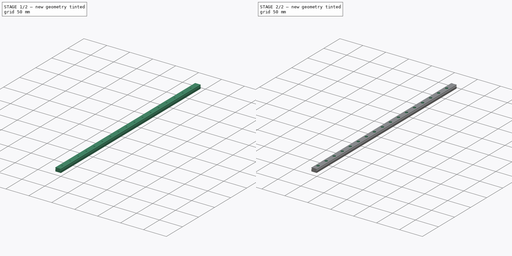
[diagram: build sequence overview — one tinted view per stage of 2, left to right]
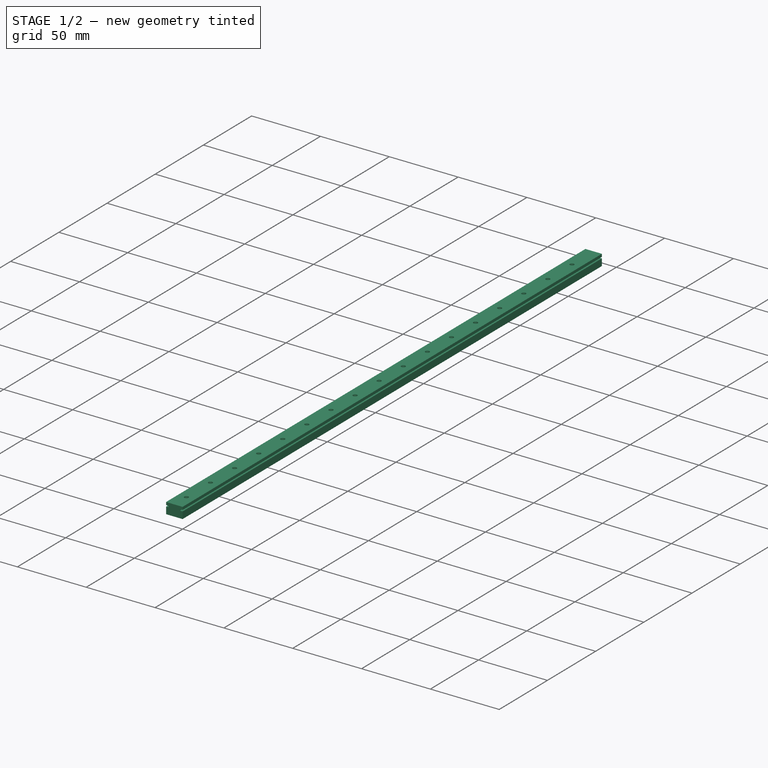
[diagram: stage 1 of 2 — iso view after this stage's code; geometry added in this stage tinted green]
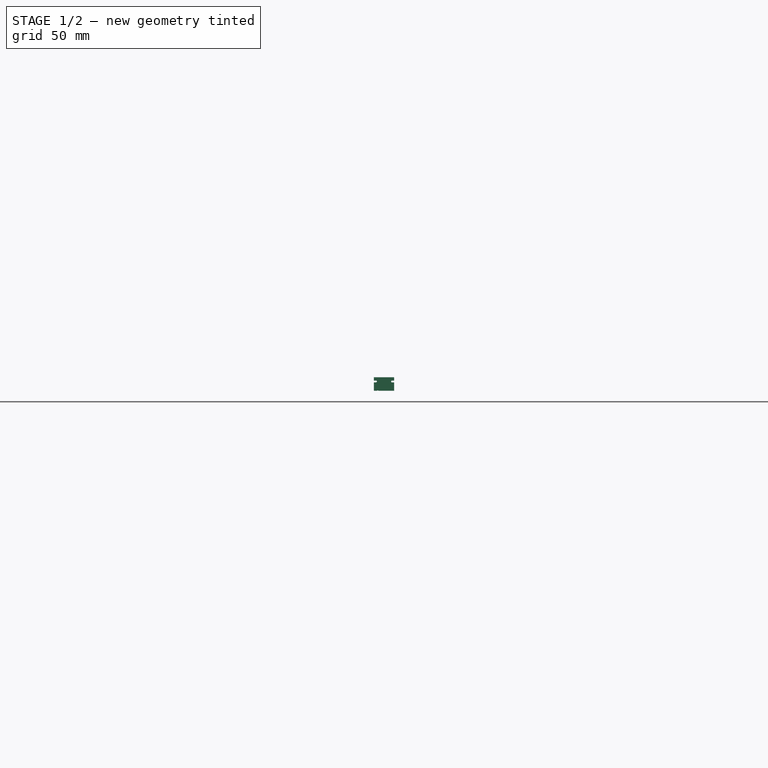
[diagram: stage 1 of 2 — front view after this stage's code; geometry added in this stage tinted green]
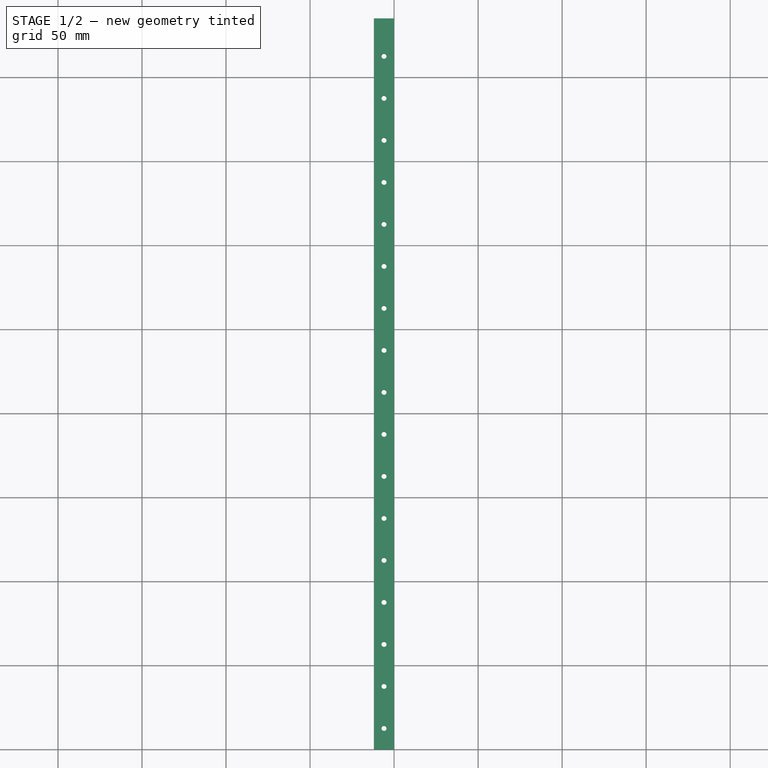
[diagram: stage 1 of 2 — top view after this stage's code; geometry added in this stage tinted green]
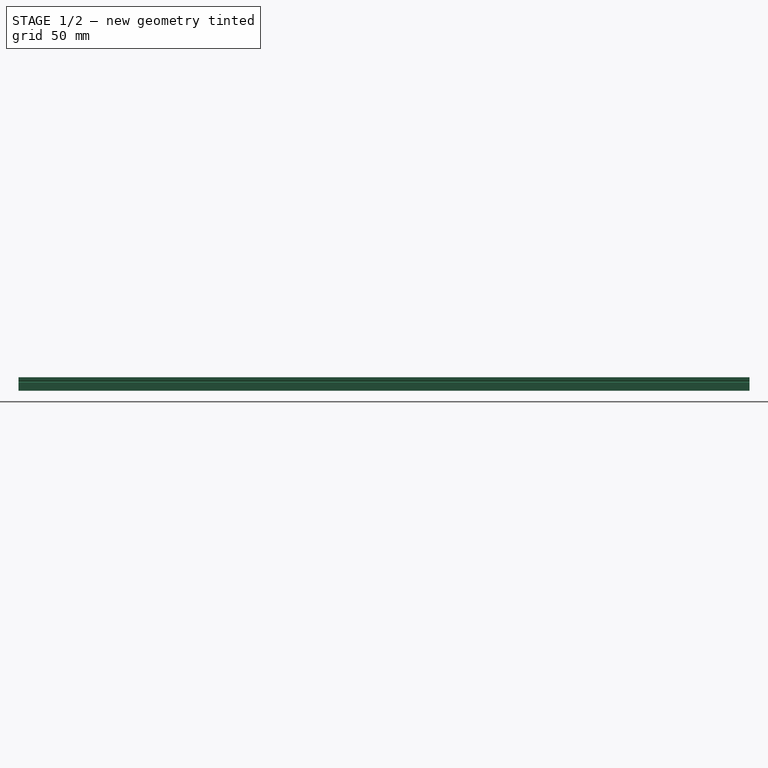
[diagram: stage 1 of 2 — right view after this stage's code; geometry added in this stage tinted green]
FCSTD DOCUMENT  (FreeCAD 0.19R24267 (Git))
Label: mgn12h-rail-435
License: All rights reserved
LicenseURL: http://en.wikipedia.org/wiki/All_rights_reserved
objects: Sketcher::SketchObject×3, PartDesign::Hole×2, PartDesign::Pad×1, PartDesign::Chamfer×1, PartDesign::Body×1
note: 12 computed .brp shape members not serialized (recipe doc carries the construction recipe); baked Part::Feature solids carry a one-line shape summary decoded from their .brp

FEATURE [Sketcher::SketchObject] Sketch  label="MGN 12H Sketch"
  FullyConstrained = true
  MapMode = 5
  Placement = pos=(0,0,0) rot=(1,0,0;1.5708rad)
  Support = -> [XZ_Plane]
  sketch-geometry (16):
    g0: LineSegment StartX=-12 StartY=5 StartZ=0 EndX=-10.7 EndY=5 EndZ=0
    g1: LineSegment StartX=-10.7 StartY=6 StartZ=0 EndX=-12 EndY=6 EndZ=0
    g2: LineSegment StartX=-12 StartY=6 StartZ=0 EndX=-12 EndY=8 EndZ=0
    g3: LineSegment StartX=-12 StartY=8 StartZ=0 EndX=0 EndY=8 EndZ=0
    g4: LineSegment StartX=0 StartY=8 StartZ=0 EndX=0 EndY=6 EndZ=0
    g5: LineSegment StartX=0 StartY=6 StartZ=0 EndX=-1.3 EndY=6 EndZ=0
    g6: LineSegment StartX=-1.3 StartY=5 StartZ=0 EndX=0 EndY=5 EndZ=0
    g7: LineSegment StartX=0 StartY=5 StartZ=0 EndX=0 EndY=0 EndZ=0
    g8: LineSegment StartX=-12 StartY=0 StartZ=0 EndX=-10 EndY=0 EndZ=0
    g9: LineSegment StartX=-10 StartY=0 StartZ=0 EndX=-10 EndY=0.2 EndZ=0
    g10: LineSegment StartX=-10 StartY=0.2 StartZ=0 EndX=-9.5 EndY=0.2 EndZ=0
    g11: LineSegment StartX=-9.5 StartY=0 StartZ=0 EndX=0 EndY=0 EndZ=0
    g12: LineSegment StartX=-12 StartY=5 StartZ=0 EndX=-12 EndY=0 EndZ=0
    g13: ArcOfCircle CenterX=-10.7 CenterY=5.5 CenterZ=0 NormalX=0 NormalY=0 NormalZ=1 AngleXU=0 Radius=0.5 StartAngle=4.71239 EndAngle=7.85398
    g14: ArcOfCircle CenterX=-1.3 CenterY=5.5 CenterZ=0 NormalX=0 NormalY=0 NormalZ=1 AngleXU=0 Radius=0.5 StartAngle=1.5708 EndAngle=4.71239
    g15: LineSegment StartX=-9.5 StartY=0 StartZ=0 EndX=-9.5 EndY=0.2 EndZ=0
  constraints (49):
    c: Horizontal(g0)
    c: Horizontal(g1)
    c: Coincident(g1,g2)
    c: Vertical(g2)
    c: Coincident(g2,g3)
    c: PointOnObject(g3,g-2)
    c: Coincident(g3,g4)
    c: Vertical(g4)
    c: Coincident(g4,g5)
    c: Horizontal(g5)
    c: Horizontal(g6)
    c: Coincident(g6,g7)
    c: DistanceY(g8,g2) = 8
    c: Horizontal(g3)
    c: DistanceY(g8,g1) = 6
    c: Vertical(g7)
    c: DistanceX(g2,g3) = 12
    c: Equal(g4,g2)
    c: Equal(g1,g0)
    c: Equal(g0,g6)
    c: Equal(g6,g5)
    c: Vertical(g9)
    c: Coincident(g9,g10)
    c: Horizontal(g10)
    c: Coincident(g11,g7)
    c: Horizontal(g11)
    c: DistanceX(g10,g10) = 0.5
    c: DistanceY(g11,g10) = 0.2
    c: DistanceX(g11,g7) = 9.5
    c: Coincident(g12,g0)
    c: Coincident(g12,g8)
    c: Vertical(g12)
    c: PointOnObject(g8,g-1)
    c: DistanceX(g8,g8) = 2
    c: DistanceY(g12,g12) = 5
    c: Equal(g7,g12)
    c: DistanceX(g1,g5) = 9.4
    c: Coincident(g8,g9)
    c: Coincident(g13,g1)
    c: Coincident(g0,g13)
    c: Radius(g13) = 0.5
    c: Coincident(g14,g6)
    c: Coincident(g14,g5)
    c: Radius(g14) = 0.5
    c: DistanceX(g13,g14) = 9.4
    c: Coincident(g7,g-1)
    c: Horizontal(g8)
    c: Coincident(g15,g11)
    c: Coincident(g15,g10)
FEATURE [PartDesign::Pad] Pad
  AllowMultiFace = false
  Direction = (1,1,1)
  Length = 435
  Length2 = 100
  Placement = pos=(0,0,0) rot=(1,0,0;1.5708rad)
  Profile = -> Sketch
  Reversed = true
  Type = 0
FEATURE [Sketcher::SketchObject] Sketch001  label="Bohrung 3,5mm"
  FullyConstrained = true
  MapMode = 5
  Placement = pos=(0,1.8e-15,8) rot=(0,0,1;3.14159rad)
  Support = -> [Pad]
  sketch-geometry (79):
    g0: LineSegment StartX=6 StartY=-12.5 StartZ=0 EndX=6 EndY=-37.5 EndZ=0
    g1: LineSegment StartX=6 StartY=-37.5 StartZ=0 EndX=6 EndY=-62.5 EndZ=0
    g2: LineSegment StartX=6 StartY=-62.5 StartZ=0 EndX=6 EndY=-87.5 EndZ=0
    g3: LineSegment StartX=6 StartY=-87.5 StartZ=0 EndX=6 EndY=-112.5 EndZ=0
    g4: LineSegment StartX=6 StartY=-112.5 StartZ=0 EndX=6 EndY=-137.5 EndZ=0
    g5: LineSegment StartX=6 StartY=-137.5 StartZ=0 EndX=6 EndY=-162.5 EndZ=0
    g6: LineSegment StartX=6 StartY=-162.5 StartZ=0 EndX=6 EndY=-187.5 EndZ=0
    g7: LineSegment StartX=6 StartY=-187.5 StartZ=0 EndX=6 EndY=-212.5 EndZ=0
    g8: LineSegment StartX=6 StartY=-212.5 StartZ=0 EndX=6 EndY=-237.5 EndZ=0
    g9: LineSegment StartX=6 StartY=-237.5 StartZ=0 EndX=6 EndY=-262.5 EndZ=0
    g10: LineSegment StartX=6 StartY=-262.5 StartZ=0 EndX=6 EndY=-287.5 EndZ=0
    g11: LineSegment StartX=6 StartY=-287.5 StartZ=0 EndX=6 EndY=-312.5 EndZ=0
    g12: LineSegment StartX=6 StartY=-312.5 StartZ=0 EndX=6 EndY=-337.5 EndZ=0
    g13: LineSegment StartX=6 StartY=-337.5 StartZ=0 EndX=6 EndY=-362.5 EndZ=0
    g14: LineSegment StartX=6 StartY=-362.5 StartZ=0 EndX=6 EndY=-387.5 EndZ=0
    g15: LineSegment StartX=6 StartY=-387.5 StartZ=0 EndX=6 EndY=-412.5 EndZ=0
    g16: LineSegment StartX=6 StartY=-412.5 StartZ=0 EndX=6 EndY=-437.5 EndZ=0
    g17: LineSegment StartX=6 StartY=-437.5 StartZ=0 EndX=6 EndY=-462.5 EndZ=0
    g18: LineSegment StartX=6 StartY=-462.5 StartZ=0 EndX=6 EndY=-487.5 EndZ=0
    g19: LineSegment StartX=6 StartY=-487.5 StartZ=0 EndX=6 EndY=-512.5 EndZ=0
    g20: LineSegment StartX=6 StartY=-512.5 StartZ=0 EndX=6 EndY=-537.5 EndZ=0
    g21: LineSegment StartX=6 StartY=-537.5 StartZ=0 EndX=6 EndY=-562.5 EndZ=0
    g22: LineSegment StartX=6 StartY=-562.5 StartZ=0 EndX=6 EndY=-587.5 EndZ=0
    g23: LineSegment StartX=6 StartY=-587.5 StartZ=0 EndX=6 EndY=-612.5 EndZ=0
    g24: LineSegment StartX=6 StartY=-612.5 StartZ=0 EndX=6 EndY=-637.5 EndZ=0
    g25: LineSegment StartX=6 StartY=-637.5 StartZ=0 EndX=6 EndY=-662.5 EndZ=0
    g26: LineSegment StartX=6 StartY=-662.5 StartZ=0 EndX=6 EndY=-687.5 EndZ=0
    g27: LineSegment StartX=6 StartY=-687.5 StartZ=0 EndX=6 EndY=-712.5 EndZ=0
    g28: LineSegment StartX=6 StartY=-712.5 StartZ=0 EndX=6 EndY=-737.5 EndZ=0
    g29: LineSegment StartX=6 StartY=-737.5 StartZ=0 EndX=6 EndY=-762.5 EndZ=0
    g30: LineSegment StartX=6 StartY=-762.5 StartZ=0 EndX=6 EndY=-787.5 EndZ=0
    g31: LineSegment StartX=6 StartY=-787.5 StartZ=0 EndX=6 EndY=-812.5 EndZ=0
    g32: LineSegment StartX=6 StartY=-812.5 StartZ=0 EndX=6 EndY=-837.5 EndZ=0
    g33: LineSegment StartX=6 StartY=-837.5 StartZ=0 EndX=6 EndY=-862.5 EndZ=0
    g34: LineSegment StartX=6 StartY=-862.5 StartZ=0 EndX=6 EndY=-887.5 EndZ=0
    g35: LineSegment StartX=6 StartY=-887.5 StartZ=0 EndX=6 EndY=-912.5 EndZ=0
    g36: LineSegment StartX=6 StartY=-912.5 StartZ=0 EndX=6 EndY=-937.5 EndZ=0
    g37: LineSegment StartX=6 StartY=-937.5 StartZ=0 EndX=6 EndY=-962.5 EndZ=0
    g38: LineSegment StartX=6 StartY=-962.5 StartZ=0 EndX=6 EndY=-987.5 EndZ=0
    g39: Circle CenterX=6 CenterY=-12.5 CenterZ=0 NormalX=0 NormalY=0 NormalZ=1 AngleXU=0 Radius=1.75
    g40: Circle CenterX=6 CenterY=-37.5 CenterZ=0 NormalX=0 NormalY=0 NormalZ=1 AngleXU=0 Radius=1.75
    g41: Circle CenterX=6 CenterY=-62.5 CenterZ=0 NormalX=0 NormalY=0 NormalZ=1 AngleXU=0 Radius=1.75
    g42: Circle CenterX=6 CenterY=-87.5 CenterZ=0 NormalX=0 NormalY=0 NormalZ=1 AngleXU=0 Radius=1.75
    g43: Circle CenterX=6 CenterY=-112.5 CenterZ=0 NormalX=0 NormalY=0 NormalZ=1 AngleXU=0 Radius=1.75
    g44: Circle CenterX=6 CenterY=-137.5 CenterZ=0 NormalX=0 NormalY=0 NormalZ=1 AngleXU=0 Radius=1.75
    g45: Circle CenterX=6 CenterY=-162.5 CenterZ=0 NormalX=0 NormalY=0 NormalZ=1 AngleXU=0 Radius=1.75
    g46: Circle CenterX=6 CenterY=-187.5 CenterZ=0 NormalX=0 NormalY=0 NormalZ=1 AngleXU=0 Radius=1.75
    g47: Circle CenterX=6 CenterY=-212.5 CenterZ=0 NormalX=0 NormalY=0 NormalZ=1 AngleXU=0 Radius=1.75
    g48: Circle CenterX=6 CenterY=-237.5 CenterZ=0 NormalX=0 NormalY=0 NormalZ=1 AngleXU=0 Radius=1.75
    g49: Circle CenterX=6 CenterY=-262.5 CenterZ=0 NormalX=0 NormalY=0 NormalZ=1 AngleXU=0 Radius=1.75
    g50: Circle CenterX=6 CenterY=-287.5 CenterZ=0 NormalX=0 NormalY=0 NormalZ=1 AngleXU=0 Radius=1.75
    g51: Circle CenterX=6 CenterY=-312.5 CenterZ=0 NormalX=0 NormalY=0 NormalZ=1 AngleXU=0 Radius=1.75
    g52: Circle CenterX=6 CenterY=-337.5 CenterZ=0 NormalX=0 NormalY=0 NormalZ=1 AngleXU=0 Radius=1.75
    g53: Circle CenterX=6 CenterY=-362.5 CenterZ=0 NormalX=0 NormalY=0 NormalZ=1 AngleXU=0 Radius=1.75
    g54: Circle CenterX=6 CenterY=-387.5 CenterZ=0 NormalX=0 NormalY=0 NormalZ=1 AngleXU=0 Radius=1.75
    g55: Circle CenterX=6 CenterY=-412.5 CenterZ=0 NormalX=0 NormalY=0 NormalZ=1 AngleXU=0 Radius=1.75
    g56: Circle CenterX=6 CenterY=-437.5 CenterZ=0 NormalX=0 NormalY=0 NormalZ=1 AngleXU=0 Radius=1.75
    g57: Circle CenterX=6 CenterY=-462.5 CenterZ=0 NormalX=0 NormalY=0 NormalZ=1 AngleXU=0 Radius=1.75
    g58: Circle CenterX=6 CenterY=-487.5 CenterZ=0 NormalX=0 NormalY=0 NormalZ=1 AngleXU=0 Radius=1.75
    g59: Circle CenterX=6 CenterY=-512.5 CenterZ=0 NormalX=0 NormalY=0 NormalZ=1 AngleXU=0 Radius=1.75
    g60: Circle CenterX=6 CenterY=-537.5 CenterZ=0 NormalX=0 NormalY=0 NormalZ=1 AngleXU=0 Radius=1.75
    g61: Circle CenterX=6 CenterY=-562.5 CenterZ=0 NormalX=0 NormalY=0 NormalZ=1 AngleXU=0 Radius=1.75
    g62: Circle CenterX=6 CenterY=-587.5 CenterZ=0 NormalX=0 NormalY=0 NormalZ=1 AngleXU=0 Radius=1.75
    g63: Circle CenterX=6 CenterY=-612.5 CenterZ=0 NormalX=0 NormalY=0 NormalZ=1 AngleXU=0 Radius=1.75
    g64: Circle CenterX=6 CenterY=-637.5 CenterZ=0 NormalX=0 NormalY=0 NormalZ=1 AngleXU=0 Radius=1.75
    g65: Circle CenterX=6 CenterY=-662.5 CenterZ=0 NormalX=0 NormalY=0 NormalZ=1 AngleXU=0 Radius=1.75
    g66: Circle CenterX=6 CenterY=-687.5 CenterZ=0 NormalX=0 NormalY=0 NormalZ=1 AngleXU=0 Radius=1.75
    g67: Circle CenterX=6 CenterY=-712.5 CenterZ=0 NormalX=0 NormalY=0 NormalZ=1 AngleXU=0 Radius=1.75
    g68: Circle CenterX=6 CenterY=-737.5 CenterZ=0 NormalX=0 NormalY=0 NormalZ=1 AngleXU=0 Radius=1.75
    g69: Circle CenterX=6 CenterY=-762.5 CenterZ=0 NormalX=0 NormalY=0 NormalZ=1 AngleXU=0 Radius=1.75
    g70: Circle CenterX=6 CenterY=-787.5 CenterZ=0 NormalX=0 NormalY=0 NormalZ=1 AngleXU=0 Radius=1.75
    g71: Circle CenterX=6 CenterY=-812.5 CenterZ=0 NormalX=0 NormalY=0 NormalZ=1 AngleXU=0 Radius=1.75
    g72: Circle CenterX=6 CenterY=-837.5 CenterZ=0 NormalX=0 NormalY=0 NormalZ=1 AngleXU=0 Radius=1.75
    g73: Circle CenterX=6 CenterY=-862.5 CenterZ=0 NormalX=0 NormalY=0 NormalZ=1 AngleXU=0 Radius=1.75
    g74: Circle CenterX=6 CenterY=-887.5 CenterZ=0 NormalX=0 NormalY=0 NormalZ=1 AngleXU=0 Radius=1.75
    g75: Circle CenterX=6 CenterY=-912.5 CenterZ=0 NormalX=0 NormalY=0 NormalZ=1 AngleXU=0 Radius=1.75
    g76: Circle CenterX=6 CenterY=-937.5 CenterZ=0 NormalX=0 NormalY=0 NormalZ=1 AngleXU=0 Radius=1.75
    g77: Circle CenterX=6 CenterY=-962.5 CenterZ=0 NormalX=0 NormalY=0 NormalZ=1 AngleXU=0 Radius=1.75
    g78: Circle CenterX=6 CenterY=-987.5 CenterZ=0 NormalX=0 NormalY=0 NormalZ=1 AngleXU=0 Radius=1.75
  constraints (198):
    c: Vertical(g0)
    c: Coincident(g0,g1)
    c: Vertical(g1)
    c: Coincident(g1,g2)
    c: Coincident(g2,g3)
    c: Coincident(g3,g4)
    c: Coincident(g4,g5)
    c: Coincident(g5,g6)
    c: Vertical(g6)
    c: Coincident(g6,g7)
    c: Coincident(g7,g8)
    c: Coincident(g8,g9)
    c: Vertical(g9)
    c: Coincident(g9,g10)
    c: Coincident(g10,g11)
    c: Coincident(g11,g12)
    c: Coincident(g12,g13)
    c: Coincident(g13,g14)
    c: Vertical(g14)
    c: Coincident(g14,g15)
    c: Coincident(g15,g16)
    c: Coincident(g16,g17)
    c: Coincident(g17,g18)
    c: Coincident(g18,g19)
    c: Vertical(g19)
    c: Coincident(g19,g20)
    c: Vertical(g20)
    c: Coincident(g20,g21)
    c: Vertical(g21)
    c: Coincident(g21,g22)
    c: Vertical(g22)
    c: Coincident(g22,g23)
    c: Coincident(g23,g24)
    c: Vertical(g24)
    c: Coincident(g24,g25)
    c: Vertical(g25)
    c: Coincident(g25,g26)
    c: Vertical(g26)
    c: Coincident(g26,g27)
    c: Coincident(g27,g28)
    c: Vertical(g28)
    c: Coincident(g28,g29)
    c: Vertical(g29)
    c: Coincident(g29,g30)
    c: Coincident(g30,g31)
    c: Vertical(g31)
    c: Coincident(g31,g32)
    c: Coincident(g32,g33)
    c: Vertical(g33)
    c: Coincident(g33,g34)
    c: Vertical(g34)
    c: Coincident(g34,g35)
    c: Vertical(g35)
    c: Coincident(g35,g36)
    c: Coincident(g36,g37)
    c: Vertical(g37)
    c: Coincident(g37,g38)
    c: Vertical(g38)
    c: Vertical(g36)
    c: Vertical(g32)
    c: Vertical(g30)
    c: Vertical(g27)
    c: Vertical(g23)
    c: Vertical(g18)
    c: Vertical(g17)
    c: Vertical(g16)
    c: Vertical(g15)
    c: Vertical(g13)
    c: Vertical(g12)
    c: Vertical(g11)
    c: Vertical(g10)
    c: Vertical(g8)
    c: Vertical(g7)
    c: Vertical(g5)
    c: Vertical(g4)
    c: Vertical(g3)
    c: Vertical(g2)
    c: DistanceY(g0,g0) = 25
    c: Equal(g0,g1)
    c: Equal(g1,g2)
    c: Equal(g2,g3)
    c: Equal(g3,g4)
    c: Equal(g4,g5)
    c: Equal(g5,g6)
    c: Equal(g6,g7)
    c: Equal(g7,g8)
    c: Equal(g8,g9)
    c: Equal(g9,g10)
    c: Equal(g10,g11)
    c: Equal(g11,g12)
    c: Equal(g12,g13)
    c: Equal(g13,g14)
    c: Equal(g14,g15)
    c: Equal(g15,g16)
    c: Equal(g16,g17)
    c: Equal(g17,g18)
    c: Equal(g18,g19)
    c: Equal(g19,g20)
    c: Equal(g20,g21)
    c: Equal(g21,g22)
    c: Equal(g22,g23)
    c: Equal(g23,g24)
    c: Equal(g24,g25)
    c: Equal(g25,g26)
    c: Equal(g26,g27)
    c: Equal(g27,g28)
    c: Equal(g28,g29)
    c: Equal(g29,g30)
    c: Equal(g30,g31)
    c: Equal(g31,g32)
    c: Equal(g32,g33)
    c: Equal(g33,g34)
    c: Equal(g34,g35)
    c: Equal(g35,g36)
    c: Equal(g36,g37)
    c: Equal(g37,g38)
    c: DistanceY(g0,g-1) = 12.5
    c: DistanceX(g-1,g0) = 6
    c: Coincident(g39,g0)
    c: Coincident(g40,g0)
    c: Coincident(g41,g1)
    c: Coincident(g42,g2)
    c: Coincident(g43,g3)
    c: Coincident(g44,g4)
    c: Coincident(g45,g5)
    c: Coincident(g46,g6)
    c: Coincident(g47,g7)
    c: Coincident(g48,g8)
    c: Coincident(g49,g9)
    c: Coincident(g50,g10)
    c: Coincident(g51,g11)
    c: Coincident(g52,g12)
    c: Coincident(g53,g13)
    c: Coincident(g54,g14)
    c: Coincident(g55,g15)
    c: Coincident(g56,g16)
    c: Coincident(g57,g17)
    c: Coincident(g58,g18)
    c: Coincident(g59,g19)
    c: Coincident(g60,g20)
    c: Coincident(g61,g21)
    c: Coincident(g62,g22)
    c: Coincident(g63,g23)
    c: Coincident(g64,g24)
    c: Coincident(g65,g25)
    c: Coincident(g66,g26)
    c: Coincident(g67,g27)
    c: Coincident(g68,g28)
    c: Coincident(g69,g29)
    c: Coincident(g70,g30)
    c: Coincident(g71,g31)
    c: Coincident(g72,g32)
    c: Coincident(g73,g33)
    c: Coincident(g74,g34)
    c: Coincident(g75,g35)
    c: Coincident(g76,g36)
    c: Coincident(g77,g37)
    c: Coincident(g78,g38)
    c: Radius(g39) = 1.75
    c: Equal(g39,g40)
    c: Equal(g40,g41)
    c: Equal(g41,g42)
    c: Equal(g42,g43)
    c: Equal(g43,g44)
    c: Equal(g44,g45)
    c: Equal(g45,g46)
    c: Equal(g46,g47)
    c: Equal(g47,g48)
    c: Equal(g48,g49)
    c: Equal(g49,g50)
    c: Equal(g50,g51)
    c: Equal(g51,g52)
    c: Equal(g52,g53)
    c: Equal(g53,g54)
    c: Equal(g54,g55)
    c: Equal(g55,g56)
    c: Equal(g56,g57)
    c: Equal(g57,g58)
    c: Equal(g58,g59)
    c: Equal(g59,g60)
    c: Equal(g60,g61)
    c: Equal(g61,g62)
    c: Equal(g62,g63)
    c: Equal(g63,g64)
    c: Equal(g64,g65)
    c: Equal(g65,g66)
    c: Equal(g66,g67)
    c: Equal(g67,g68)
    c: Equal(g68,g69)
    c: Equal(g69,g70)
    c: Equal(g70,g71)
    c: Equal(g71,g72)
    c: Equal(g72,g73)
    c: Equal(g73,g74)
    c: Equal(g74,g75)
    c: Equal(g75,g76)
    c: Equal(g76,g77)
    c: Equal(g77,g78)
FEATURE [Sketcher::SketchObject] Sketch002  label="Bohrung 6mm"
  FullyConstrained = true
  MapMode = 5
  Placement = pos=(0,1.8e-15,8) rot=(0,0,1;3.14159rad)
  Support = -> [Pad]
  sketch-geometry (79):
    g0: LineSegment StartX=6 StartY=-12.5 StartZ=0 EndX=6 EndY=-37.5 EndZ=0
    g1: LineSegment StartX=6 StartY=-37.5 StartZ=0 EndX=6 EndY=-62.5 EndZ=0
    g2: LineSegment StartX=6 StartY=-62.5 StartZ=0 EndX=6 EndY=-87.5 EndZ=0
    g3: LineSegment StartX=6 StartY=-87.5 StartZ=0 EndX=6 EndY=-112.5 EndZ=0
    g4: LineSegment StartX=6 StartY=-112.5 StartZ=0 EndX=6 EndY=-137.5 EndZ=0
    g5: LineSegment StartX=6 StartY=-137.5 StartZ=0 EndX=6 EndY=-162.5 EndZ=0
    g6: LineSegment StartX=6 StartY=-162.5 StartZ=0 EndX=6 EndY=-187.5 EndZ=0
    g7: LineSegment StartX=6 StartY=-187.5 StartZ=0 EndX=6 EndY=-212.5 EndZ=0
    g8: LineSegment StartX=6 StartY=-212.5 StartZ=0 EndX=6 EndY=-237.5 EndZ=0
    g9: LineSegment StartX=6 StartY=-237.5 StartZ=0 EndX=6 EndY=-262.5 EndZ=0
    g10: LineSegment StartX=6 StartY=-262.5 StartZ=0 EndX=6 EndY=-287.5 EndZ=0
    g11: LineSegment StartX=6 StartY=-287.5 StartZ=0 EndX=6 EndY=-312.5 EndZ=0
    g12: LineSegment StartX=6 StartY=-312.5 StartZ=0 EndX=6 EndY=-337.5 EndZ=0
    g13: LineSegment StartX=6 StartY=-337.5 StartZ=0 EndX=6 EndY=-362.5 EndZ=0
    g14: LineSegment StartX=6 StartY=-362.5 StartZ=0 EndX=6 EndY=-387.5 EndZ=0
    g15: LineSegment StartX=6 StartY=-387.5 StartZ=0 EndX=6 EndY=-412.5 EndZ=0
    g16: LineSegment StartX=6 StartY=-412.5 StartZ=0 EndX=6 EndY=-437.5 EndZ=0
    g17: LineSegment StartX=6 StartY=-437.5 StartZ=0 EndX=6 EndY=-462.5 EndZ=0
    g18: LineSegment StartX=6 StartY=-462.5 StartZ=0 EndX=6 EndY=-487.5 EndZ=0
    g19: LineSegment StartX=6 StartY=-487.5 StartZ=0 EndX=6 EndY=-512.5 EndZ=0
    g20: LineSegment StartX=6 StartY=-512.5 StartZ=0 EndX=6 EndY=-537.5 EndZ=0
    g21: LineSegment StartX=6 StartY=-537.5 StartZ=0 EndX=6 EndY=-562.5 EndZ=0
    g22: LineSegment StartX=6 StartY=-562.5 StartZ=0 EndX=6 EndY=-587.5 EndZ=0
    g23: LineSegment StartX=6 StartY=-587.5 StartZ=0 EndX=6 EndY=-612.5 EndZ=0
    g24: LineSegment StartX=6 StartY=-612.5 StartZ=0 EndX=6 EndY=-637.5 EndZ=0
    g25: LineSegment StartX=6 StartY=-637.5 StartZ=0 EndX=6 EndY=-662.5 EndZ=0
    g26: LineSegment StartX=6 StartY=-662.5 StartZ=0 EndX=6 EndY=-687.5 EndZ=0
    g27: LineSegment StartX=6 StartY=-687.5 StartZ=0 EndX=6 EndY=-712.5 EndZ=0
    g28: LineSegment StartX=6 StartY=-712.5 StartZ=0 EndX=6 EndY=-737.5 EndZ=0
    g29: LineSegment StartX=6 StartY=-737.5 StartZ=0 EndX=6 EndY=-762.5 EndZ=0
    g30: LineSegment StartX=6 StartY=-762.5 StartZ=0 EndX=6 EndY=-787.5 EndZ=0
    g31: LineSegment StartX=6 StartY=-787.5 StartZ=0 EndX=6 EndY=-812.5 EndZ=0
    g32: LineSegment StartX=6 StartY=-812.5 StartZ=0 EndX=6 EndY=-837.5 EndZ=0
    g33: LineSegment StartX=6 StartY=-837.5 StartZ=0 EndX=6 EndY=-862.5 EndZ=0
    g34: LineSegment StartX=6 StartY=-862.5 StartZ=0 EndX=6 EndY=-887.5 EndZ=0
    g35: LineSegment StartX=6 StartY=-887.5 StartZ=0 EndX=6 EndY=-912.5 EndZ=0
    g36: LineSegment StartX=6 StartY=-912.5 StartZ=0 EndX=6 EndY=-937.5 EndZ=0
    g37: LineSegment StartX=6 StartY=-937.5 StartZ=0 EndX=6 EndY=-962.5 EndZ=0
    g38: LineSegment StartX=6 StartY=-962.5 StartZ=0 EndX=6 EndY=-987.5 EndZ=0
    g39: Circle CenterX=6 CenterY=-12.5 CenterZ=0 NormalX=0 NormalY=0 NormalZ=1 AngleXU=0 Radius=1.75
    g40: Circle CenterX=6 CenterY=-37.5 CenterZ=0 NormalX=0 NormalY=0 NormalZ=1 AngleXU=0 Radius=1.75
    g41: Circle CenterX=6 CenterY=-62.5 CenterZ=0 NormalX=0 NormalY=0 NormalZ=1 AngleXU=0 Radius=1.75
    g42: Circle CenterX=6 CenterY=-87.5 CenterZ=0 NormalX=0 NormalY=0 NormalZ=1 AngleXU=0 Radius=1.75
    g43: Circle CenterX=6 CenterY=-112.5 CenterZ=0 NormalX=0 NormalY=0 NormalZ=1 AngleXU=0 Radius=1.75
    g44: Circle CenterX=6 CenterY=-137.5 CenterZ=0 NormalX=0 NormalY=0 NormalZ=1 AngleXU=0 Radius=1.75
    g45: Circle CenterX=6 CenterY=-162.5 CenterZ=0 NormalX=0 NormalY=0 NormalZ=1 AngleXU=0 Radius=1.75
    g46: Circle CenterX=6 CenterY=-187.5 CenterZ=0 NormalX=0 NormalY=0 NormalZ=1 AngleXU=0 Radius=1.75
    g47: Circle CenterX=6 CenterY=-212.5 CenterZ=0 NormalX=0 NormalY=0 NormalZ=1 AngleXU=0 Radius=1.75
    g48: Circle CenterX=6 CenterY=-237.5 CenterZ=0 NormalX=0 NormalY=0 NormalZ=1 AngleXU=0 Radius=1.75
    g49: Circle CenterX=6 CenterY=-262.5 CenterZ=0 NormalX=0 NormalY=0 NormalZ=1 AngleXU=0 Radius=1.75
    g50: Circle CenterX=6 CenterY=-287.5 CenterZ=0 NormalX=0 NormalY=0 NormalZ=1 AngleXU=0 Radius=1.75
    g51: Circle CenterX=6 CenterY=-312.5 CenterZ=0 NormalX=0 NormalY=0 NormalZ=1 AngleXU=0 Radius=1.75
    g52: Circle CenterX=6 CenterY=-337.5 CenterZ=0 NormalX=0 NormalY=0 NormalZ=1 AngleXU=0 Radius=1.75
    g53: Circle CenterX=6 CenterY=-362.5 CenterZ=0 NormalX=0 NormalY=0 NormalZ=1 AngleXU=0 Radius=1.75
    g54: Circle CenterX=6 CenterY=-387.5 CenterZ=0 NormalX=0 NormalY=0 NormalZ=1 AngleXU=0 Radius=1.75
    g55: Circle CenterX=6 CenterY=-412.5 CenterZ=0 NormalX=0 NormalY=0 NormalZ=1 AngleXU=0 Radius=1.75
    g56: Circle CenterX=6 CenterY=-437.5 CenterZ=0 NormalX=0 NormalY=0 NormalZ=1 AngleXU=0 Radius=1.75
    g57: Circle CenterX=6 CenterY=-462.5 CenterZ=0 NormalX=0 NormalY=0 NormalZ=1 AngleXU=0 Radius=1.75
    g58: Circle CenterX=6 CenterY=-487.5 CenterZ=0 NormalX=0 NormalY=0 NormalZ=1 AngleXU=0 Radius=1.75
    g59: Circle CenterX=6 CenterY=-512.5 CenterZ=0 NormalX=0 NormalY=0 NormalZ=1 AngleXU=0 Radius=1.75
    g60: Circle CenterX=6 CenterY=-537.5 CenterZ=0 NormalX=0 NormalY=0 NormalZ=1 AngleXU=0 Radius=1.75
    g61: Circle CenterX=6 CenterY=-562.5 CenterZ=0 NormalX=0 NormalY=0 NormalZ=1 AngleXU=0 Radius=1.75
    g62: Circle CenterX=6 CenterY=-587.5 CenterZ=0 NormalX=0 NormalY=0 NormalZ=1 AngleXU=0 Radius=1.75
    g63: Circle CenterX=6 CenterY=-612.5 CenterZ=0 NormalX=0 NormalY=0 NormalZ=1 AngleXU=0 Radius=1.75
    g64: Circle CenterX=6 CenterY=-637.5 CenterZ=0 NormalX=0 NormalY=0 NormalZ=1 AngleXU=0 Radius=1.75
    g65: Circle CenterX=6 CenterY=-662.5 CenterZ=0 NormalX=0 NormalY=0 NormalZ=1 AngleXU=0 Radius=1.75
    g66: Circle CenterX=6 CenterY=-687.5 CenterZ=0 NormalX=0 NormalY=0 NormalZ=1 AngleXU=0 Radius=1.75
    g67: Circle CenterX=6 CenterY=-712.5 CenterZ=0 NormalX=0 NormalY=0 NormalZ=1 AngleXU=0 Radius=1.75
    g68: Circle CenterX=6 CenterY=-737.5 CenterZ=0 NormalX=0 NormalY=0 NormalZ=1 AngleXU=0 Radius=1.75
    g69: Circle CenterX=6 CenterY=-762.5 CenterZ=0 NormalX=0 NormalY=0 NormalZ=1 AngleXU=0 Radius=1.75
    g70: Circle CenterX=6 CenterY=-787.5 CenterZ=0 NormalX=0 NormalY=0 NormalZ=1 AngleXU=0 Radius=1.75
    g71: Circle CenterX=6 CenterY=-812.5 CenterZ=0 NormalX=0 NormalY=0 NormalZ=1 AngleXU=0 Radius=1.75
    g72: Circle CenterX=6 CenterY=-837.5 CenterZ=0 NormalX=0 NormalY=0 NormalZ=1 AngleXU=0 Radius=1.75
    g73: Circle CenterX=6 CenterY=-862.5 CenterZ=0 NormalX=0 NormalY=0 NormalZ=1 AngleXU=0 Radius=1.75
    g74: Circle CenterX=6 CenterY=-887.5 CenterZ=0 NormalX=0 NormalY=0 NormalZ=1 AngleXU=0 Radius=1.75
    g75: Circle CenterX=6 CenterY=-912.5 CenterZ=0 NormalX=0 NormalY=0 NormalZ=1 AngleXU=0 Radius=1.75
    g76: Circle CenterX=6 CenterY=-937.5 CenterZ=0 NormalX=0 NormalY=0 NormalZ=1 AngleXU=0 Radius=1.75
    g77: Circle CenterX=6 CenterY=-962.5 CenterZ=0 NormalX=0 NormalY=0 NormalZ=1 AngleXU=0 Radius=1.75
    g78: Circle CenterX=6 CenterY=-987.5 CenterZ=0 NormalX=0 NormalY=0 NormalZ=1 AngleXU=0 Radius=1.75
  constraints (198):
    c: Vertical(g0)
    c: Coincident(g0,g1)
    c: Vertical(g1)
    c: Coincident(g1,g2)
    c: Coincident(g2,g3)
    c: Coincident(g3,g4)
    c: Coincident(g4,g5)
    c: Coincident(g5,g6)
    c: Vertical(g6)
    c: Coincident(g6,g7)
    c: Coincident(g7,g8)
    c: Coincident(g8,g9)
    c: Vertical(g9)
    c: Coincident(g9,g10)
    c: Coincident(g10,g11)
    c: Coincident(g11,g12)
    c: Coincident(g12,g13)
    c: Coincident(g13,g14)
    c: Vertical(g14)
    c: Coincident(g14,g15)
    c: Coincident(g15,g16)
    c: Coincident(g16,g17)
    c: Coincident(g17,g18)
    c: Coincident(g18,g19)
    c: Vertical(g19)
    c: Coincident(g19,g20)
    c: Vertical(g20)
    c: Coincident(g20,g21)
    c: Vertical(g21)
    c: Coincident(g21,g22)
    c: Vertical(g22)
    c: Coincident(g22,g23)
    c: Coincident(g23,g24)
    c: Vertical(g24)
    c: Coincident(g24,g25)
    c: Vertical(g25)
    c: Coincident(g25,g26)
    c: Vertical(g26)
    c: Coincident(g26,g27)
    c: Coincident(g27,g28)
    c: Vertical(g28)
    c: Coincident(g28,g29)
    c: Vertical(g29)
    c: Coincident(g29,g30)
    c: Coincident(g30,g31)
    c: Vertical(g31)
    c: Coincident(g31,g32)
    c: Coincident(g32,g33)
    c: Vertical(g33)
    c: Coincident(g33,g34)
    c: Vertical(g34)
    c: Coincident(g34,g35)
    c: Vertical(g35)
    c: Coincident(g35,g36)
    c: Coincident(g36,g37)
    c: Vertical(g37)
    c: Coincident(g37,g38)
    c: Vertical(g38)
    c: Vertical(g36)
    c: Vertical(g32)
    c: Vertical(g30)
    c: Vertical(g27)
    c: Vertical(g23)
    c: Vertical(g18)
    c: Vertical(g17)
    c: Vertical(g16)
    c: Vertical(g15)
    c: Vertical(g13)
    c: Vertical(g12)
    c: Vertical(g11)
    c: Vertical(g10)
    c: Vertical(g8)
    c: Vertical(g7)
    c: Vertical(g5)
    c: Vertical(g4)
    c: Vertical(g3)
    c: Vertical(g2)
    c: DistanceY(g0,g0) = 25
    c: Equal(g0,g1)
    c: Equal(g1,g2)
    c: Equal(g2,g3)
    c: Equal(g3,g4)
    c: Equal(g4,g5)
    c: Equal(g5,g6)
    c: Equal(g6,g7)
    c: Equal(g7,g8)
    c: Equal(g8,g9)
    c: Equal(g9,g10)
    c: Equal(g10,g11)
    c: Equal(g11,g12)
    c: Equal(g12,g13)
    c: Equal(g13,g14)
    c: Equal(g14,g15)
    c: Equal(g15,g16)
    c: Equal(g16,g17)
    c: Equal(g17,g18)
    c: Equal(g18,g19)
    c: Equal(g19,g20)
    c: Equal(g20,g21)
    c: Equal(g21,g22)
    c: Equal(g22,g23)
    c: Equal(g23,g24)
    c: Equal(g24,g25)
    c: Equal(g25,g26)
    c: Equal(g26,g27)
    c: Equal(g27,g28)
    c: Equal(g28,g29)
    c: Equal(g29,g30)
    c: Equal(g30,g31)
    c: Equal(g31,g32)
    c: Equal(g32,g33)
    c: Equal(g33,g34)
    c: Equal(g34,g35)
    c: Equal(g35,g36)
    c: Equal(g36,g37)
    c: Equal(g37,g38)
    c: DistanceY(g0,g-1) = 12.5
    c: DistanceX(g-1,g0) = 6
    c: Coincident(g39,g0)
    c: Coincident(g40,g0)
    c: Coincident(g41,g1)
    c: Coincident(g42,g2)
    c: Coincident(g43,g3)
    c: Coincident(g44,g4)
    c: Coincident(g45,g5)
    c: Coincident(g46,g6)
    c: Coincident(g47,g7)
    c: Coincident(g48,g8)
    c: Coincident(g49,g9)
    c: Coincident(g50,g10)
    c: Coincident(g51,g11)
    c: Coincident(g52,g12)
    c: Coincident(g53,g13)
    c: Coincident(g54,g14)
    c: Coincident(g55,g15)
    c: Coincident(g56,g16)
    c: Coincident(g57,g17)
    c: Coincident(g58,g18)
    c: Coincident(g59,g19)
    c: Coincident(g60,g20)
    c: Coincident(g61,g21)
    c: Coincident(g62,g22)
    c: Coincident(g63,g23)
    c: Coincident(g64,g24)
    c: Coincident(g65,g25)
    c: Coincident(g66,g26)
    c: Coincident(g67,g27)
    c: Coincident(g68,g28)
    c: Coincident(g69,g29)
    c: Coincident(g70,g30)
    c: Coincident(g71,g31)
    c: Coincident(g72,g32)
    c: Coincident(g73,g33)
    c: Coincident(g74,g34)
    c: Coincident(g75,g35)
    c: Coincident(g76,g36)
    c: Coincident(g77,g37)
    c: Coincident(g78,g38)
    c: Radius(g39) = 1.75
    c: Equal(g39,g40)
    c: Equal(g40,g41)
    c: Equal(g41,g42)
    c: Equal(g42,g43)
    c: Equal(g43,g44)
    c: Equal(g44,g45)
    c: Equal(g45,g46)
    c: Equal(g46,g47)
    c: Equal(g47,g48)
    c: Equal(g48,g49)
    c: Equal(g49,g50)
    c: Equal(g50,g51)
    c: Equal(g51,g52)
    c: Equal(g52,g53)
    c: Equal(g53,g54)
    c: Equal(g54,g55)
    c: Equal(g55,g56)
    c: Equal(g56,g57)
    c: Equal(g57,g58)
    c: Equal(g58,g59)
    c: Equal(g59,g60)
    c: Equal(g60,g61)
    c: Equal(g61,g62)
    c: Equal(g62,g63)
    c: Equal(g63,g64)
    c: Equal(g64,g65)
    c: Equal(g65,g66)
    c: Equal(g66,g67)
    c: Equal(g67,g68)
    c: Equal(g68,g69)
    c: Equal(g69,g70)
    c: Equal(g70,g71)
    c: Equal(g71,g72)
    c: Equal(g72,g73)
    c: Equal(g73,g74)
    c: Equal(g74,g75)
    c: Equal(g75,g76)
    c: Equal(g76,g77)
    c: Equal(g77,g78)
FEATURE [PartDesign::Hole] Hole
  AllowMultiFace = false
  BaseFeature = -> Pad
  Depth = 8
  DepthType = 0
  Diameter = 3
  DrillForDepth = false
  DrillPoint = 0
  DrillPointAngle = 118
  HoleCutCountersinkAngle = 90
  HoleCutCustomValues = false
  HoleCutDepth = 0
  HoleCutDiameter = 0
  HoleCutType = 0
  ModelActualThread = false
  Placement = pos=(0,0,0) rot=(1,0,0;1.5708rad)
  Profile = -> Sketch001
  Tapered = false
  TaperedAngle = 90
  ThreadAngle = 0
  ThreadClass = 0
  ThreadCutOffInner = 0
  ThreadCutOffOuter = 0
  ThreadDirection = 0
  ThreadFit = 0
  ThreadPitch = 0
  ThreadSize = 0
  ThreadType = 0
  Threaded = false
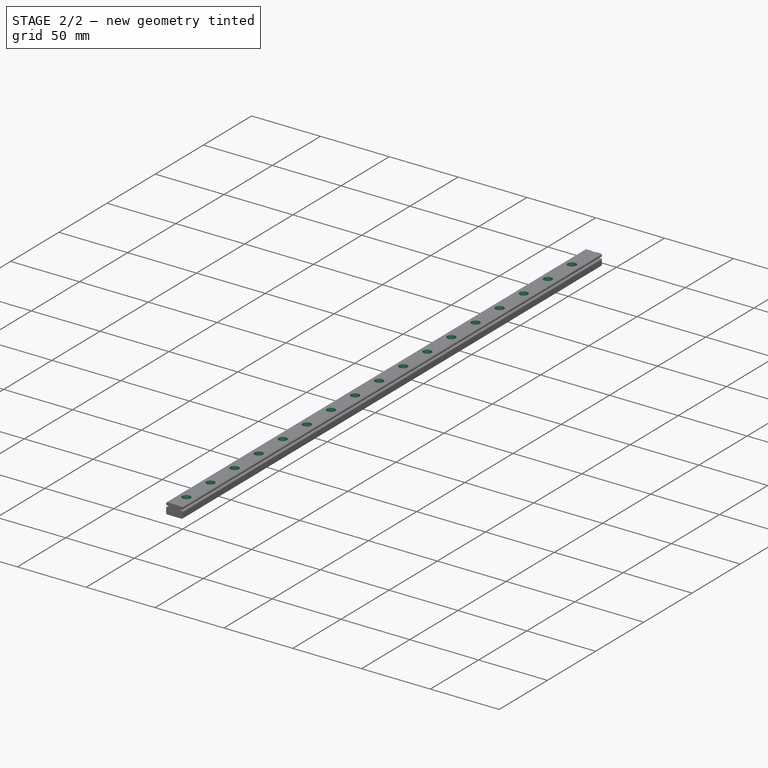
[diagram: stage 2 of 2 — iso view after this stage's code; geometry added in this stage tinted green]
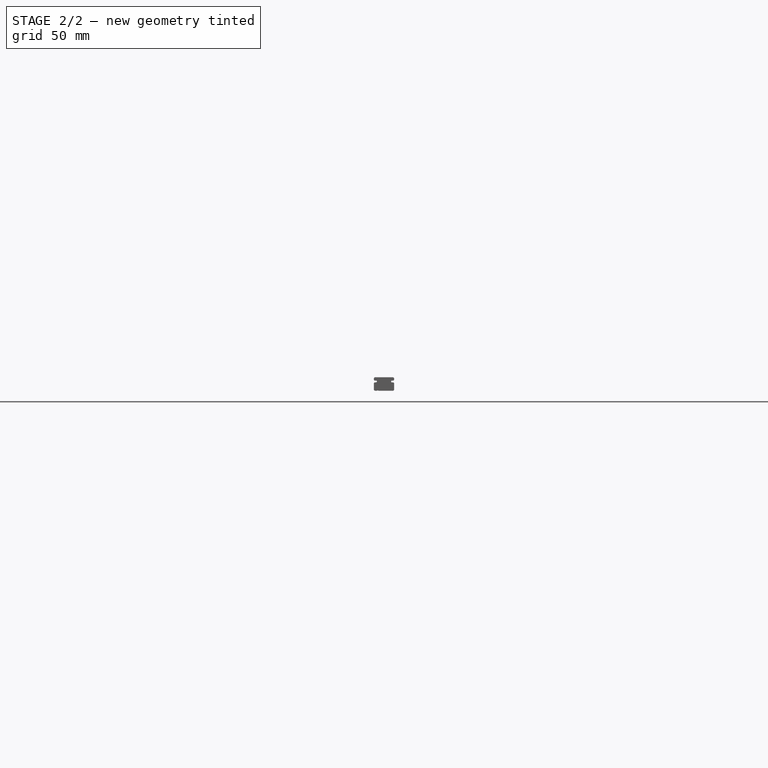
[diagram: stage 2 of 2 — front view after this stage's code; geometry added in this stage tinted green]
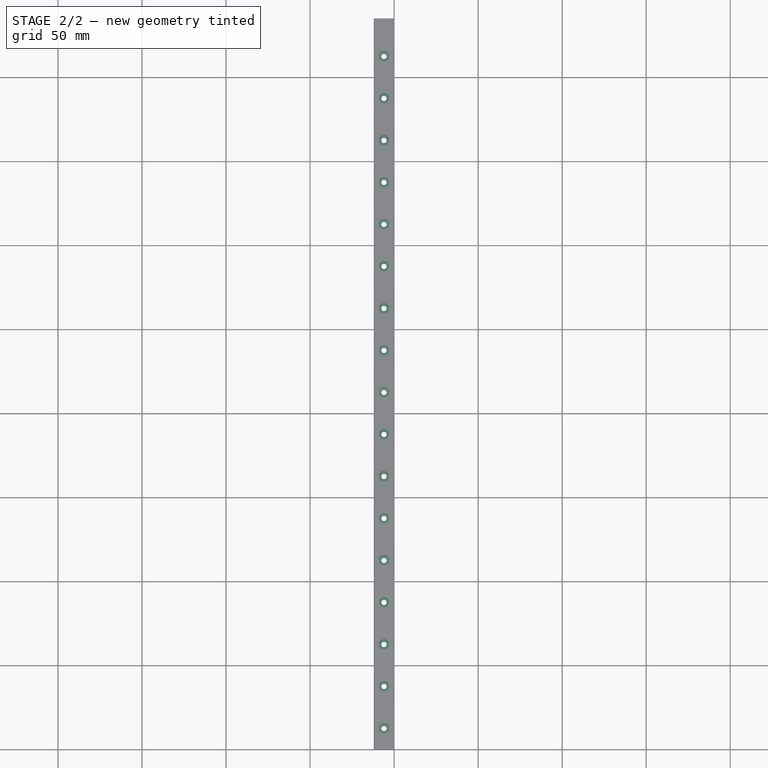
[diagram: stage 2 of 2 — top view after this stage's code; geometry added in this stage tinted green]
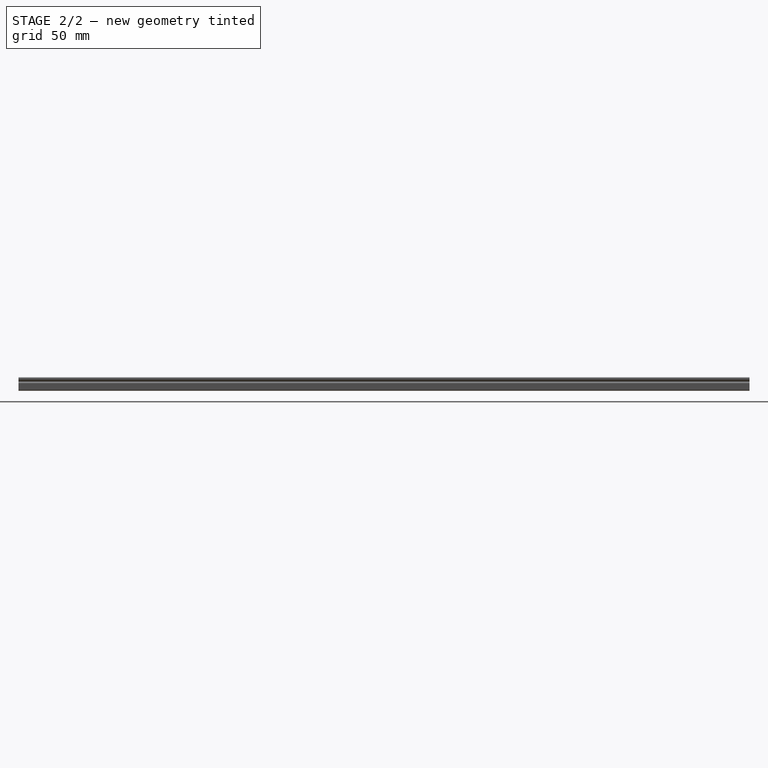
[diagram: stage 2 of 2 — right view after this stage's code; geometry added in this stage tinted green]
FEATURE [PartDesign::Hole] Hole001
  AllowMultiFace = false
  BaseFeature = -> Hole
  Depth = 4.5
  DepthType = 0
  Diameter = 6
  DrillForDepth = false
  DrillPoint = 0
  DrillPointAngle = 118
  HoleCutCountersinkAngle = 90
  HoleCutCustomValues = false
  HoleCutDepth = 0
  HoleCutDiameter = 0
  HoleCutType = 0
  ModelActualThread = false
  Placement = pos=(0,0,0) rot=(1,0,0;1.5708rad)
  Profile = -> Sketch002
  Tapered = false
  TaperedAngle = 90
  ThreadAngle = 0
  ThreadClass = 0
  ThreadCutOffInner = 0
  ThreadCutOffOuter = 0
  ThreadDirection = 0
  ThreadFit = 0
  ThreadPitch = 0
  ThreadSize = 0
  ThreadType = 0
  Threaded = false
FEATURE [PartDesign::Chamfer] Chamfer
  Angle = 45
  Base = -> Hole001 [Edge44,Edge43,Edge1,Edge2,Edge45,Edge64,Edge67,Edge68]
  BaseFeature = -> Hole001
  ChamferType = 0
  FlipDirection = false
  Placement = pos=(0,0,0) rot=(1,0,0;1.5708rad)
  Size = 0.5
  Size2 = 1
  SupportTransform = false
FEATURE [PartDesign::Body] Body
  Group = -> [Sketch,Sketch001,Sketch002,Pad,Hole,Hole001,Chamfer]
  Origin = -> Origin
  Tip = -> Chamfer
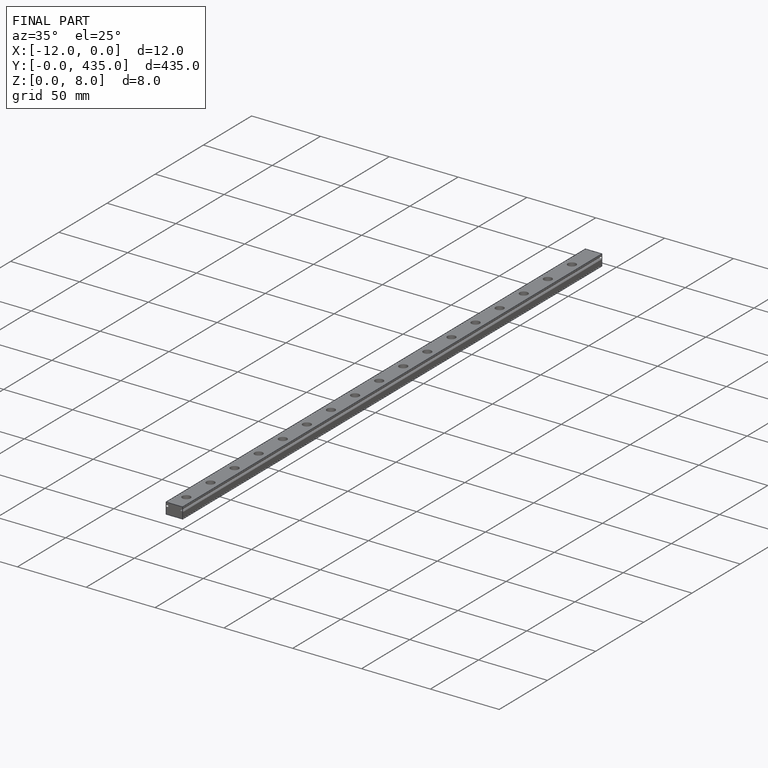
[diagram: finished part — iso view with bounding-box wireframe]
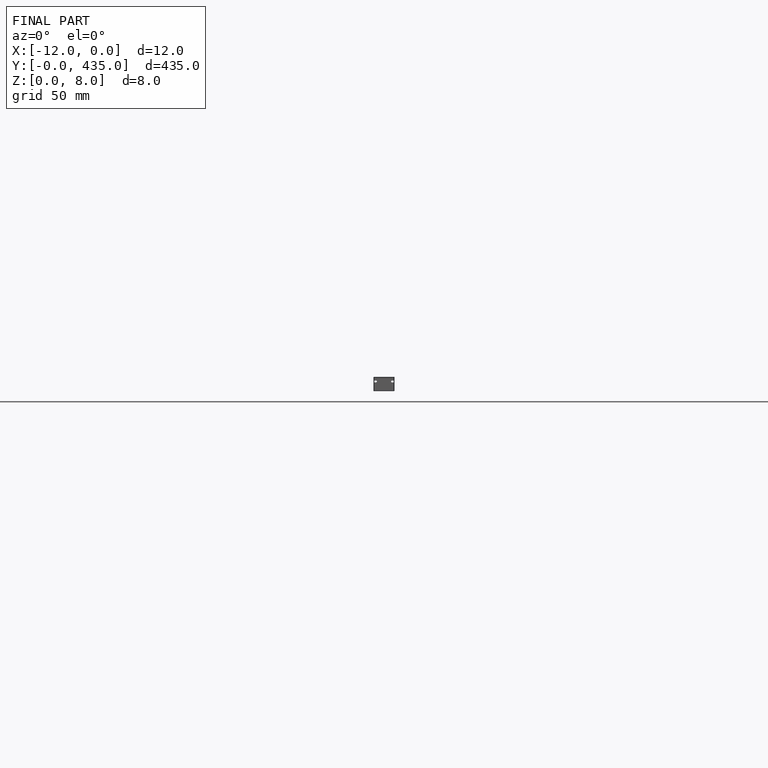
[diagram: finished part — front view with bounding-box wireframe]
